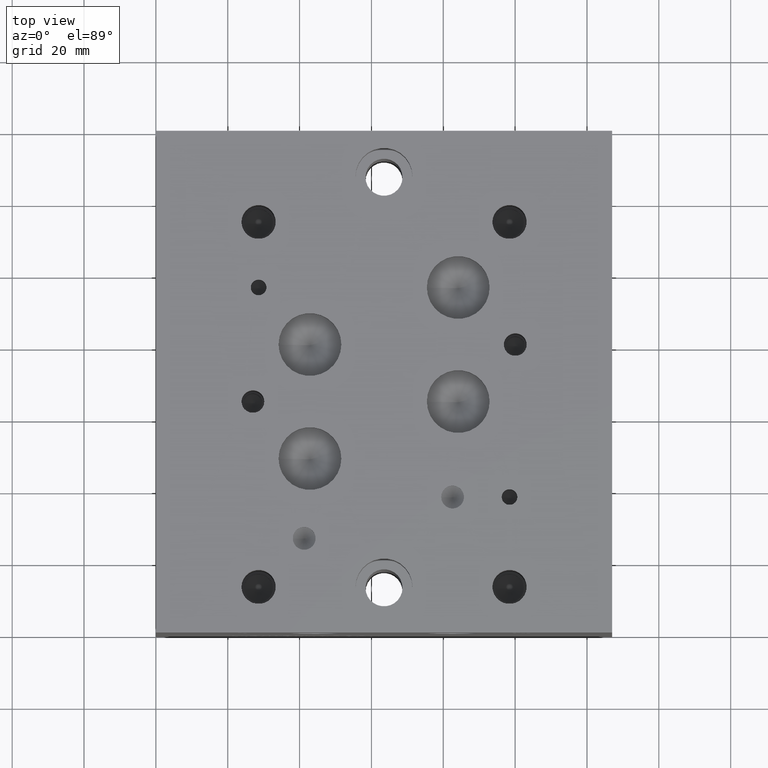
[diagram: clean part render]
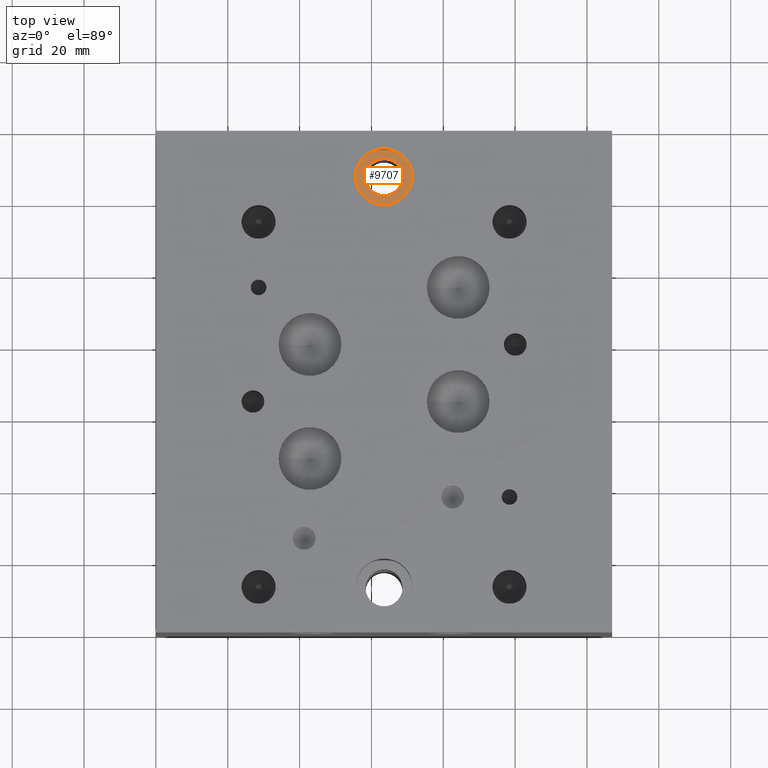
[diagram: same view with one face highlighted and labeled with its STEP entity id]
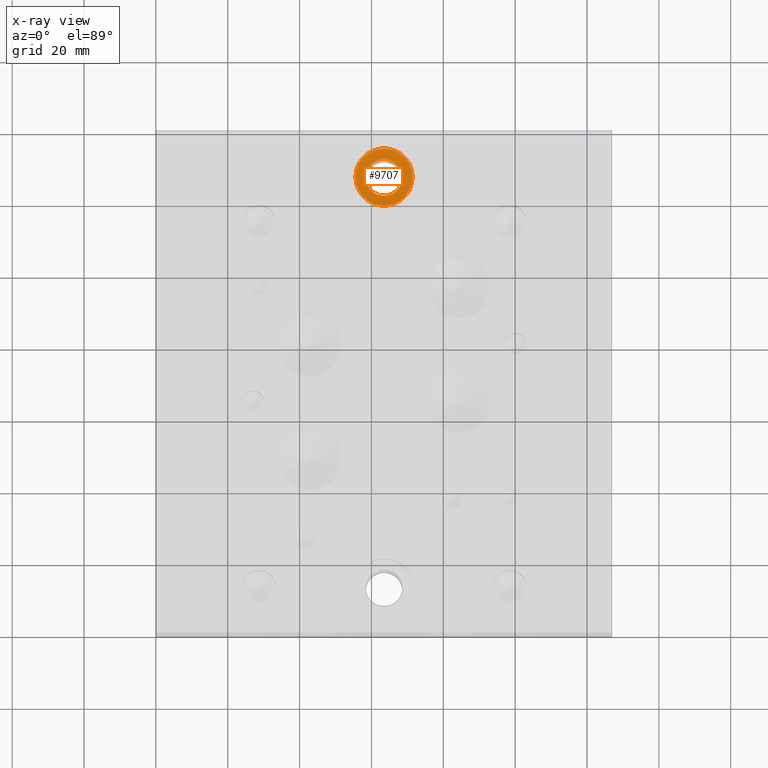
[diagram: x-ray of the same camera — body ghosted, the highlighted face saturated]
A machine part, top view. The second image highlights one B-rep face of the part: STEP entity #9707.
The next image is the same camera in x-ray: the body ghosted, the highlighted face saturated — about 0% of this face is hidden behind the body in this view.
In plain terms, the highlighted planar face has unit normal (0, 0, 1).
Its self-contained STEP definition (entity closure, byte-faithful):
#112=CIRCLE('',#10127,7.9375);
#113=CIRCLE('',#10128,7.9375);
#114=CIRCLE('',#10129,5.1562);
#249=FACE_BOUND('',#1572,.T.);
#568=PLANE('',#10126);
#1025=FACE_OUTER_BOUND('',#1571,.T.);
#1571=EDGE_LOOP('',(#8452,#8453));
#1572=EDGE_LOOP('',(#8454));
#4617=VERTEX_POINT('',#16379);
#4618=VERTEX_POINT('',#16380);
#4619=VERTEX_POINT('',#16383);
#5927=EDGE_CURVE('',#4617,#4618,#112,.T.);
#5928=EDGE_CURVE('',#4618,#4617,#113,.T.);
#5929=EDGE_CURVE('',#4619,#4619,#114,.T.);
#8452=ORIENTED_EDGE('',*,*,#5927,.T.);
#8453=ORIENTED_EDGE('',*,*,#5928,.T.);
#8454=ORIENTED_EDGE('',*,*,#5929,.F.);
#9707=ADVANCED_FACE('',(#1025,#249),#568,.T.);
#10126=AXIS2_PLACEMENT_3D('',#16378,#11876,#11877);
#10127=AXIS2_PLACEMENT_3D('',#16381,#11878,#11879);
#10128=AXIS2_PLACEMENT_3D('',#16382,#11880,#11881);
#10129=AXIS2_PLACEMENT_3D('',#16384,#11882,#11883);
#11876=DIRECTION('center_axis',(0.,0.,1.));
#11877=DIRECTION('ref_axis',(1.,0.,0.));
#11878=DIRECTION('center_axis',(0.,0.,1.));
#11879=DIRECTION('ref_axis',(1.,0.,0.));
#11880=DIRECTION('center_axis',(0.,0.,1.));
#11881=DIRECTION('ref_axis',(1.,0.,0.));
#11882=DIRECTION('center_axis',(0.,0.,1.));
#11883=DIRECTION('ref_axis',(1.,0.,0.));
#16378=CARTESIAN_POINT('Origin',(63.5,127.,61.9252));
#16379=CARTESIAN_POINT('',(71.4375,127.,61.9252));
#16380=CARTESIAN_POINT('',(55.5625,127.,61.9252));
#16381=CARTESIAN_POINT('Origin',(63.5,127.,61.9252));
#16382=CARTESIAN_POINT('Origin',(63.5,127.,61.9252));
#16383=CARTESIAN_POINT('',(58.3438,127.,61.9252));
#16384=CARTESIAN_POINT('Origin',(63.5,127.,61.9252));